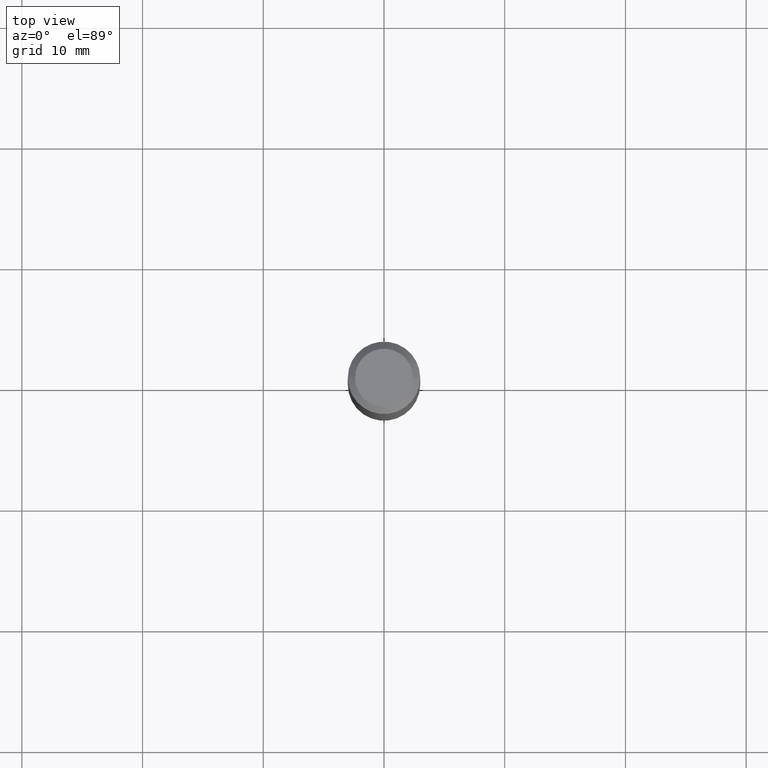
[diagram: clean part render]
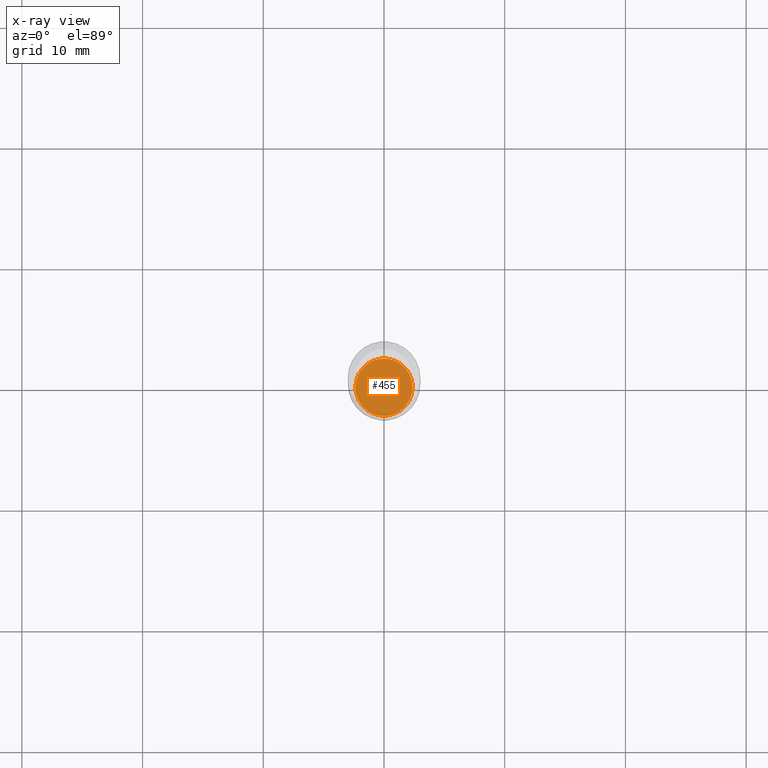
[diagram: x-ray — body ghosted, one internal face saturated and labeled with its STEP entity id]
A machine part, top view, then the same camera in x-ray: the body is ghosted and one INTERNAL B-rep face — a face not visible from any outside direction — is saturated and labeled: STEP entity #455.
In plain terms, the highlighted planar face has unit normal (-0, 0, 1).
Its self-contained STEP definition (entity closure, byte-faithful):
#1 = ORIENTED_EDGE ( 'NONE', *, *, #401, .F. ) ;
#15 = CARTESIAN_POINT ( 'NONE',  ( -0.09324999999999998568, -5.546813269799320197E-15, -1.779199999999999893 ) ) ;
#27 = DIRECTION ( 'NONE',  ( -2.445468806185136597E-29, 3.491481338843145583E-15, 1.000000000000000000 ) ) ;
#43 = VERTEX_POINT ( 'NONE', #15 ) ;
#45 = DIRECTION ( 'NONE',  ( -2.438088387897960049E-29, 3.491481338843145188E-15, 1.000000000000000000 ) ) ;
#52 = DIRECTION ( 'NONE',  ( -2.445468806185136597E-29, 3.491481338843145583E-15, 1.000000000000000000 ) ) ;
#73 = EDGE_LOOP ( 'NONE', ( #1, #197 ) ) ;
#98 = CIRCLE ( 'NONE', #490, 0.09324999999999998568 ) ;
#123 = CIRCLE ( 'NONE', #227, 0.09324999999999998568 ) ;
#148 = CARTESIAN_POINT ( 'NONE',  ( 4.350978099964594525E-29, -6.212043598069725213E-15, -1.779199999999999893 ) ) ;
#163 = VERTEX_POINT ( 'NONE', #510 ) ;
#183 = DIRECTION ( 'NONE',  ( 1.000000000000000000, -6.982962677686269077E-15, 0.000000000000000000 ) ) ;
#187 = AXIS2_PLACEMENT_3D ( 'NONE', #445, #45, #365 ) ;
#197 = ORIENTED_EDGE ( 'NONE', *, *, #253, .F. ) ;
#227 = AXIS2_PLACEMENT_3D ( 'NONE', #411, #52, #327 ) ;
#253 = EDGE_CURVE ( 'NONE', #43, #163, #98, .T. ) ;
#279 = PLANE ( 'NONE',  #187 ) ;
#327 = DIRECTION ( 'NONE',  ( 1.000000000000000000, -6.982962677686269077E-15, 0.000000000000000000 ) ) ;
#365 = DIRECTION ( 'NONE',  ( 1.000000000000000000, -6.982962677686265922E-15, 4.876176775795935793E-29 ) ) ;
#401 = EDGE_CURVE ( 'NONE', #163, #43, #123, .T. ) ;
#411 = CARTESIAN_POINT ( 'NONE',  ( 4.350978099964594525E-29, -6.212043598069725213E-15, -1.779199999999999893 ) ) ;
#412 = FACE_OUTER_BOUND ( 'NONE', #73, .T. ) ;
#445 = CARTESIAN_POINT ( 'NONE',  ( 4.350978099964594525E-29, -6.212043598069725213E-15, -1.779199999999999893 ) ) ;
#455 = ADVANCED_FACE ( 'NONE', ( #412 ), #279, .F. ) ;
#490 = AXIS2_PLACEMENT_3D ( 'NONE', #148, #27, #183 ) ;
#510 = CARTESIAN_POINT ( 'NONE',  ( 0.09324999999999998568, -6.863204867763969710E-15, -1.779199999999999893 ) ) ;